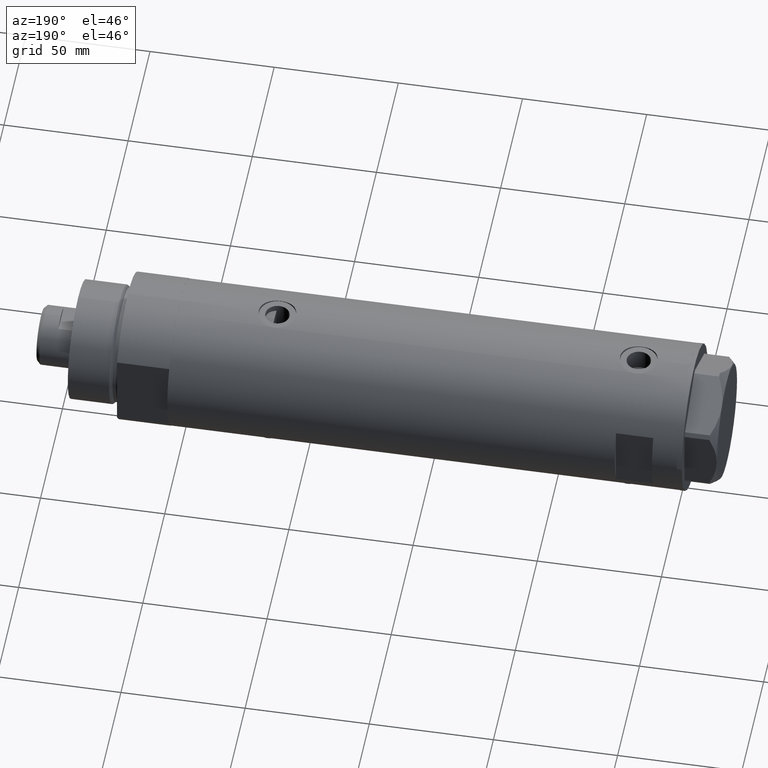
[diagram: clean part render]
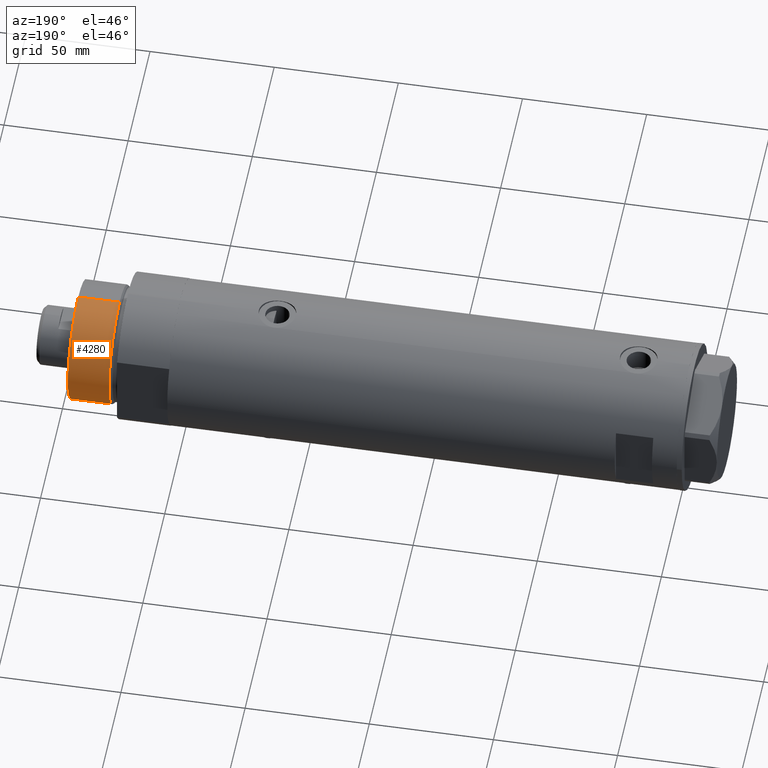
[diagram: same view with one face highlighted and labeled with its STEP entity id]
A machine part, auxiliary view. The second image highlights one B-rep face of the part: STEP entity #4280.
In plain terms, the highlighted cylindrical surface (partial cylindrical patch) has radius 24 mm, axis along (-1, -0, 0).
Its self-contained STEP definition (entity closure, byte-faithful):
#2 = ORIENTED_EDGE ( 'NONE', *, *, #3139, .T. ) ;
#5 = VERTEX_POINT ( 'NONE', #899 ) ;
#24 = DIRECTION ( 'NONE',  ( 0.000000000000000000, 0.000000000000000000, 1.000000000000000000 ) ) ;
#217 = EDGE_CURVE ( 'NONE', #5, #1115, #3331, .T. ) ;
#228 = CARTESIAN_POINT ( 'NONE',  ( -24.00000000000000355, 0.000000000000000000, 41.00000000000000000 ) ) ;
#366 = ORIENTED_EDGE ( 'NONE', *, *, #3432, .T. ) ;
#383 = DIRECTION ( 'NONE',  ( -0.000000000000000000, -0.000000000000000000, -1.000000000000000000 ) ) ;
#644 = DIRECTION ( 'NONE',  ( -0.000000000000000000, -0.000000000000000000, 1.000000000000000000 ) ) ;
#823 = VERTEX_POINT ( 'NONE', #2915 ) ;
#899 = CARTESIAN_POINT ( 'NONE',  ( -24.00000000000000355, 0.000000000000000000, 41.00000000000000000 ) ) ;
#941 = DIRECTION ( 'NONE',  ( -0.000000000000000000, -0.000000000000000000, -1.000000000000000000 ) ) ;
#1093 = DIRECTION ( 'NONE',  ( -1.000000000000000000, 0.000000000000000000, 0.000000000000000000 ) ) ;
#1115 = VERTEX_POINT ( 'NONE', #3708 ) ;
#1260 = VECTOR ( 'NONE', #941, 1000.000000000000000 ) ;
#1406 = CYLINDRICAL_SURFACE ( 'NONE', #3159, 24.00000000000000355 ) ;
#1716 = ORIENTED_EDGE ( 'NONE', *, *, #2426, .F. ) ;
#2050 = CIRCLE ( 'NONE', #2916, 24.00000000000000355 ) ;
#2370 = DIRECTION ( 'NONE',  ( 1.000000000000000000, 0.000000000000000000, 0.000000000000000000 ) ) ;
#2415 = DIRECTION ( 'NONE',  ( 1.000000000000000000, 0.000000000000000000, 0.000000000000000000 ) ) ;
#2426 = EDGE_CURVE ( 'NONE', #823, #5, #2050, .T. ) ;
#2650 = LINE ( 'NONE', #4050, #1260 ) ;
#2779 = CARTESIAN_POINT ( 'NONE',  ( 0.000000000000000000, 0.000000000000000000, 41.00000000000000000 ) ) ;
#2793 = CARTESIAN_POINT ( 'NONE',  ( 24.00000000000000355, 2.939152317953648289E-15, 24.37384048104054557 ) ) ;
#2904 = EDGE_LOOP ( 'NONE', ( #1716, #2, #366, #3422 ) ) ;
#2915 = CARTESIAN_POINT ( 'NONE',  ( 24.00000000000000355, 2.939152317953648289E-15, 41.00000000000000000 ) ) ;
#2916 = AXIS2_PLACEMENT_3D ( 'NONE', #3071, #24, #2415 ) ;
#2977 = DIRECTION ( 'NONE',  ( -0.000000000000000000, -0.000000000000000000, -1.000000000000000000 ) ) ;
#3071 = CARTESIAN_POINT ( 'NONE',  ( 0.000000000000000000, 0.000000000000000000, 41.00000000000000000 ) ) ;
#3073 = CIRCLE ( 'NONE', #3450, 24.00000000000000355 ) ;
#3139 = EDGE_CURVE ( 'NONE', #823, #3952, #2650, .T. ) ;
#3159 = AXIS2_PLACEMENT_3D ( 'NONE', #2779, #383, #1093 ) ;
#3331 = LINE ( 'NONE', #228, #4223 ) ;
#3422 = ORIENTED_EDGE ( 'NONE', *, *, #217, .F. ) ;
#3432 = EDGE_CURVE ( 'NONE', #3952, #1115, #3073, .T. ) ;
#3450 = AXIS2_PLACEMENT_3D ( 'NONE', #4089, #644, #2370 ) ;
#3708 = CARTESIAN_POINT ( 'NONE',  ( -24.00000000000000355, 0.000000000000000000, 24.37384048104054557 ) ) ;
#3952 = VERTEX_POINT ( 'NONE', #2793 ) ;
#4050 = CARTESIAN_POINT ( 'NONE',  ( 24.00000000000000355, 2.939152317953648289E-15, 41.00000000000000000 ) ) ;
#4089 = CARTESIAN_POINT ( 'NONE',  ( 0.000000000000000000, 0.000000000000000000, 24.37384048104054557 ) ) ;
#4212 = FACE_OUTER_BOUND ( 'NONE', #2904, .T. ) ;
#4223 = VECTOR ( 'NONE', #2977, 1000.000000000000000 ) ;
#4280 = ADVANCED_FACE ( 'NONE', ( #4212 ), #1406, .T. ) ;